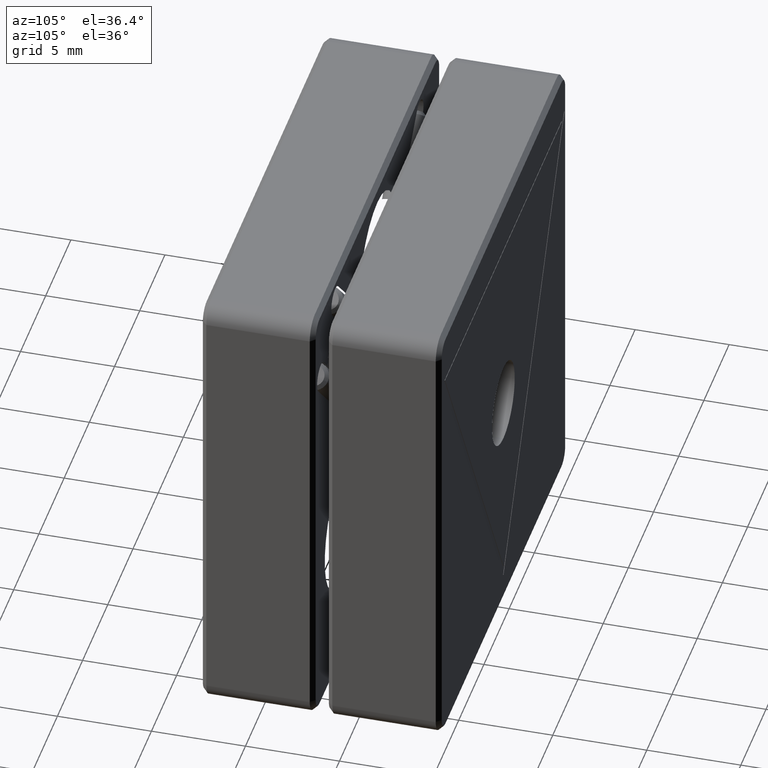
[diagram: clean part render]
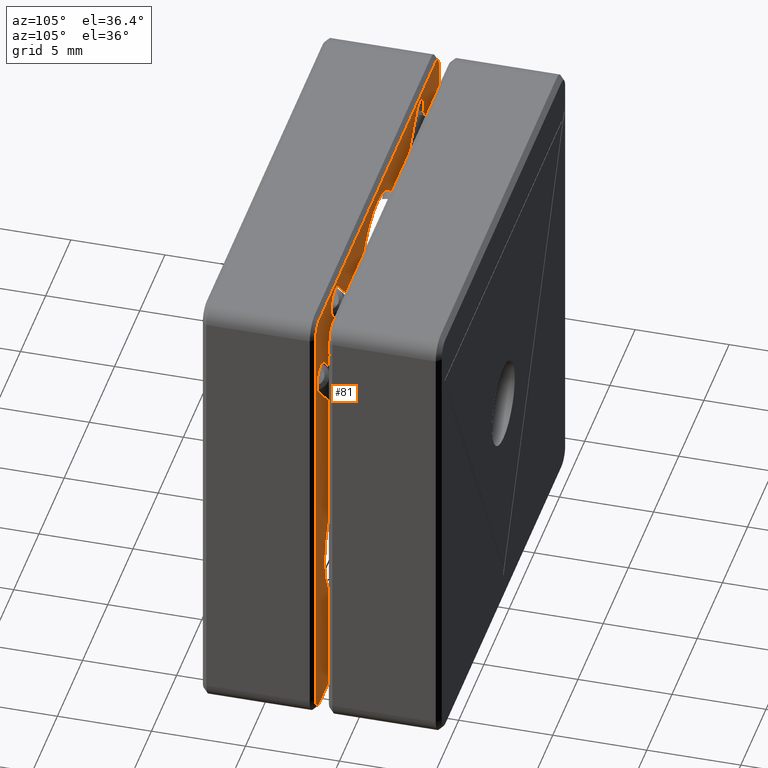
[diagram: same view with one face highlighted and labeled with its STEP entity id]
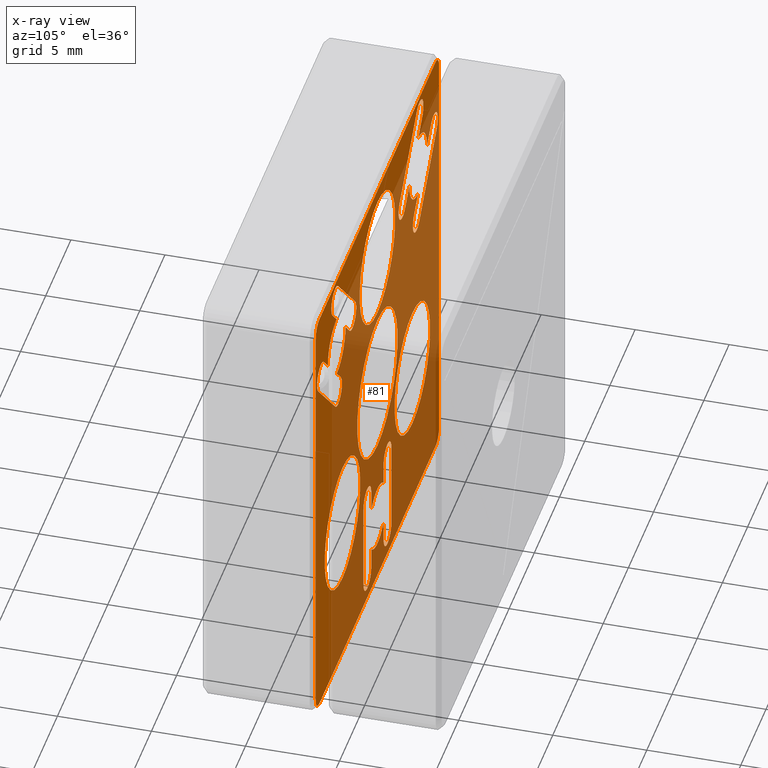
[diagram: x-ray of the same camera — body ghosted, the highlighted face saturated]
A machine part, auxiliary view. The second image highlights one B-rep face of the part: STEP entity #81.
The next image is the same camera in x-ray: the body ghosted, the highlighted face saturated — about 71% of this face is hidden behind the body in this view.
In plain terms, the highlighted planar face has unit normal (0, 1, 0).
Its self-contained STEP definition (entity closure, byte-faithful):
#3 = VECTOR ( 'NONE', #2230, 1000.000000000000000 ) ;
#11 = AXIS2_PLACEMENT_3D ( 'NONE', #2228, #701, #2520 ) ;
#20 = ORIENTED_EDGE ( 'NONE', *, *, #2879, .T. ) ;
#43 = DIRECTION ( 'NONE',  ( -0.0000000000000000000, -1.000000000000000000, -0.0000000000000000000 ) ) ;
#44 = CARTESIAN_POINT ( 'NONE',  ( 11.19705627484766275, 3.000000000000000000, 8.368629150101572378 ) ) ;
#67 = EDGE_LOOP ( 'NONE', ( #2270, #2521 ) ) ;
#73 = CARTESIAN_POINT ( 'NONE',  ( 8.368629150101458691, 3.000000000000000000, 11.97205627484775015 ) ) ;
#80 = LINE ( 'NONE', #3201, #1453 ) ;
#81 = ADVANCED_FACE ( 'NONE', ( #1383, #2047, #381, #3089, #3361, #1288, #2367, #1893 ), #555, .T. ) ;
#87 = LINE ( 'NONE', #1878, #2042 ) ;
#96 = VERTEX_POINT ( 'NONE', #1902 ) ;
#100 = ORIENTED_EDGE ( 'NONE', *, *, #3152, .F. ) ;
#109 = ORIENTED_EDGE ( 'NONE', *, *, #3322, .T. ) ;
#110 = VERTEX_POINT ( 'NONE', #2120 ) ;
#122 = CARTESIAN_POINT ( 'NONE',  ( 11.50000000000000711, 3.000000000000000000, 12.25000000000000178 ) ) ;
#135 = EDGE_CURVE ( 'NONE', #110, #1205, #3200, .T. ) ;
#137 = CARTESIAN_POINT ( 'NONE',  ( 6.928203230275491009, 3.000000000000000000, -0.4750000000000357270 ) ) ;
#138 = VERTEX_POINT ( 'NONE', #2662 ) ;
#159 = VERTEX_POINT ( 'NONE', #2917 ) ;
#169 = EDGE_CURVE ( 'NONE', #2098, #3027, #1023, .T. ) ;
#172 = DIRECTION ( 'NONE',  ( 0.0000000000000000000, 0.0000000000000000000, 1.000000000000000000 ) ) ;
#176 = ORIENTED_EDGE ( 'NONE', *, *, #3018, .F. ) ;
#181 = ORIENTED_EDGE ( 'NONE', *, *, #3286, .F. ) ;
#204 = DIRECTION ( 'NONE',  ( 0.0000000000000000000, 0.0000000000000000000, -1.000000000000000000 ) ) ;
#205 = EDGE_CURVE ( 'NONE', #2929, #1398, #770, .T. ) ;
#207 = CARTESIAN_POINT ( 'NONE',  ( -11.74506403026723689, 3.000000000000000000, 7.820621394682005345 ) ) ;
#216 = CARTESIAN_POINT ( 'NONE',  ( 4.898587196589406912E-16, 3.000000000000000000, -3.999999999999993339 ) ) ;
#224 = DIRECTION ( 'NONE',  ( 0.0000000000000000000, 0.0000000000000000000, 1.000000000000000000 ) ) ;
#232 = ORIENTED_EDGE ( 'NONE', *, *, #2838, .F. ) ;
#241 = LINE ( 'NONE', #2945, #3278 ) ;
#244 = CARTESIAN_POINT ( 'NONE',  ( -7.820621394681877447, 3.000000000000000000, 11.74506403026732215 ) ) ;
#262 = DIRECTION ( 'NONE',  ( -0.0000000000000000000, -0.0000000000000000000, 1.000000000000000000 ) ) ;
#263 = DIRECTION ( 'NONE',  ( 0.0000000000000000000, 0.0000000000000000000, -1.000000000000000000 ) ) ;
#269 = ORIENTED_EDGE ( 'NONE', *, *, #791, .F. ) ;
#287 = CARTESIAN_POINT ( 'NONE',  ( -10.64904851942807440, 3.000000000000000000, 8.916636905521153622 ) ) ;
#290 = CARTESIAN_POINT ( 'NONE',  ( -10.64904851942807618, 3.000000000000000000, 8.916636905521153622 ) ) ;
#302 = AXIS2_PLACEMENT_3D ( 'NONE', #2251, #2536, #1264 ) ;
#309 = CARTESIAN_POINT ( 'NONE',  ( 1.411405436017324910E-15, 3.000000000000000000, 4.474999999999996092 ) ) ;
#314 = ORIENTED_EDGE ( 'NONE', *, *, #2378, .F. ) ;
#315 = CARTESIAN_POINT ( 'NONE',  ( 11.50000000000000711, 3.000000000000000000, 11.50000000000000178 ) ) ;
#317 = LINE ( 'NONE', #2362, #404 ) ;
#320 = CARTESIAN_POINT ( 'NONE',  ( 12.25000000000000711, 3.000000000000000000, 11.50000000000000178 ) ) ;
#325 = CARTESIAN_POINT ( 'NONE',  ( -5.522524355825618514, 3.000000000000000000, 7.254935969732734691 ) ) ;
#327 = DIRECTION ( 'NONE',  ( 0.0000000000000000000, 0.0000000000000000000, 1.000000000000000000 ) ) ;
#331 = CIRCLE ( 'NONE', #1945, 3.524999999999991473 ) ;
#336 = ORIENTED_EDGE ( 'NONE', *, *, #1783, .T. ) ;
#337 = DIRECTION ( 'NONE',  ( 0.0000000000000000000, 0.0000000000000000000, -1.000000000000000000 ) ) ;
#345 = ORIENTED_EDGE ( 'NONE', *, *, #659, .F. ) ;
#347 = CARTESIAN_POINT ( 'NONE',  ( -7.254935969732668966, 3.000000000000000000, 5.522524355825702891 ) ) ;
#348 = ORIENTED_EDGE ( 'NONE', *, *, #1691, .F. ) ;
#352 = CARTESIAN_POINT ( 'NONE',  ( -11.49999999999999289, 3.000000000000000000, 11.50000000000000355 ) ) ;
#381 = FACE_BOUND ( 'NONE', #3020, .T. ) ;
#386 = VERTEX_POINT ( 'NONE', #1988 ) ;
#395 = DIRECTION ( 'NONE',  ( 0.7071067811865435759, -0.0000000000000000000, 0.7071067811865513475 ) ) ;
#404 = VECTOR ( 'NONE', #204, 1000.000000000000000 ) ;
#409 = CIRCLE ( 'NONE', #3087, 1.749999999999999778 ) ;
#410 = EDGE_LOOP ( 'NONE', ( #1942, #1810 ) ) ;
#414 = VECTOR ( 'NONE', #1797, 1000.000000000000114 ) ;
#415 = CARTESIAN_POINT ( 'NONE',  ( -6.928203230275546964, 3.000000000000000000, -3.999999999999935163 ) ) ;
#421 = CIRCLE ( 'NONE', #1968, 3.525000000000003908 ) ;
#423 = DIRECTION ( 'NONE',  ( -0.0000000000000000000, -1.000000000000000000, -0.0000000000000000000 ) ) ;
#425 = AXIS2_PLACEMENT_3D ( 'NONE', #2387, #2705, #2146 ) ;
#433 = EDGE_LOOP ( 'NONE', ( #1162, #1758, #1350, #2623, #348, #2456, #1172, #566, #2286, #2253, #2018, #314, #2479, #1390 ) ) ;
#455 = VECTOR ( 'NONE', #2949, 1000.000000000000000 ) ;
#491 = CIRCLE ( 'NONE', #762, 0.7750000000000031308 ) ;
#492 = CARTESIAN_POINT ( 'NONE',  ( 2.774999999999999467, 3.000000000000000000, -6.100000000000000533 ) ) ;
#501 = DIRECTION ( 'NONE',  ( -0.0000000000000000000, -1.000000000000000000, -0.0000000000000000000 ) ) ;
#510 = VERTEX_POINT ( 'NONE', #2282 ) ;
#528 = AXIS2_PLACEMENT_3D ( 'NONE', #623, #1129, #2181 ) ;
#539 = EDGE_CURVE ( 'NONE', #2170, #2795, #1196, .T. ) ;
#543 = DIRECTION ( 'NONE',  ( 0.0000000000000000000, 1.000000000000000000, 0.0000000000000000000 ) ) ;
#555 = PLANE ( 'NONE',  #1713 ) ;
#556 = CIRCLE ( 'NONE', #425, 3.999999999999993339 ) ;
#558 = AXIS2_PLACEMENT_3D ( 'NONE', #1777, #2836, #172 ) ;
#560 = CARTESIAN_POINT ( 'NONE',  ( 6.928203230275491009, 3.000000000000000000, -7.525000000000031442 ) ) ;
#563 = DIRECTION ( 'NONE',  ( -0.0000000000000000000, -0.0000000000000000000, 1.000000000000000000 ) ) ;
#566 = ORIENTED_EDGE ( 'NONE', *, *, #2074, .F. ) ;
#568 = CARTESIAN_POINT ( 'NONE',  ( 0.0000000000000000000, 3.000000000000000000, 0.0000000000000000000 ) ) ;
#569 = CARTESIAN_POINT ( 'NONE',  ( -2.000000000000000000, 3.000000000000000000, -10.90000000000000036 ) ) ;
#596 = DIRECTION ( 'NONE',  ( 0.0000000000000000000, 0.0000000000000000000, 1.000000000000000000 ) ) ;
#602 = VECTOR ( 'NONE', #789, 1000.000000000000000 ) ;
#613 = VERTEX_POINT ( 'NONE', #3177 ) ;
#614 = VERTEX_POINT ( 'NONE', #810 ) ;
#615 = AXIS2_PLACEMENT_3D ( 'NONE', #1163, #1109, #626 ) ;
#619 = VERTEX_POINT ( 'NONE', #2376 ) ;
#623 = CARTESIAN_POINT ( 'NONE',  ( 0.0000000000000000000, 3.000000000000000000, -8.500000000000000000 ) ) ;
#626 = DIRECTION ( 'NONE',  ( 0.0000000000000000000, 0.0000000000000000000, -1.000000000000000000 ) ) ;
#631 = CARTESIAN_POINT ( 'NONE',  ( -8.068285562473688444, 3.000000000000000000, 6.335873948566738356 ) ) ;
#633 = VERTEX_POINT ( 'NONE', #2913 ) ;
#642 = CIRCLE ( 'NONE', #1142, 0.7749999999999996891 ) ;
#643 = CARTESIAN_POINT ( 'NONE',  ( 1.225000000000000089, 3.000000000000000000, -7.250250025005001930 ) ) ;
#644 = DIRECTION ( 'NONE',  ( 0.0000000000000000000, 0.0000000000000000000, 1.000000000000000000 ) ) ;
#645 = DIRECTION ( 'NONE',  ( 0.0000000000000000000, 1.000000000000000000, 0.0000000000000000000 ) ) ;
#651 = DIRECTION ( 'NONE',  ( -0.7071067811865436870, 0.0000000000000000000, -0.7071067811865513475 ) ) ;
#659 = EDGE_CURVE ( 'NONE', #993, #1053, #1062, .T. ) ;
#682 = ORIENTED_EDGE ( 'NONE', *, *, #2751, .F. ) ;
#687 = LINE ( 'NONE', #290, #1800 ) ;
#690 = LINE ( 'NONE', #3006, #3 ) ;
#691 = EDGE_CURVE ( 'NONE', #1436, #781, #87, .T. ) ;
#701 = DIRECTION ( 'NONE',  ( -0.0000000000000000000, -1.000000000000000000, -0.0000000000000000000 ) ) ;
#704 = DIRECTION ( 'NONE',  ( 0.0000000000000000000, 0.0000000000000000000, 1.000000000000000000 ) ) ;
#709 = CARTESIAN_POINT ( 'NONE',  ( -8.916636905521034606, 3.000000000000000000, 10.64904851942817565 ) ) ;
#718 = CARTESIAN_POINT ( 'NONE',  ( -4.426508844986464908, 3.000000000000000000, 8.350951480571874086 ) ) ;
#728 = EDGE_CURVE ( 'NONE', #3027, #2098, #556, .T. ) ;
#734 = DIRECTION ( 'NONE',  ( -0.7071067811865436870, -0.0000000000000000000, 0.7071067811865513475 ) ) ;
#748 = AXIS2_PLACEMENT_3D ( 'NONE', #3243, #2974, #327 ) ;
#750 = EDGE_CURVE ( 'NONE', #3249, #96, #241, .T. ) ;
#752 = DIRECTION ( 'NONE',  ( 0.0000000000000000000, 0.0000000000000000000, -1.000000000000000000 ) ) ;
#759 = CIRCLE ( 'NONE', #1158, 0.7500000000000006661 ) ;
#762 = AXIS2_PLACEMENT_3D ( 'NONE', #2853, #2304, #990 ) ;
#770 = CIRCLE ( 'NONE', #2950, 0.7500000000000006661 ) ;
#771 = EDGE_CURVE ( 'NONE', #3215, #2514, #421, .T. ) ;
#773 = CARTESIAN_POINT ( 'NONE',  ( 6.928203230275491009, 3.000000000000000000, -4.000000000000033751 ) ) ;
#781 = VERTEX_POINT ( 'NONE', #1485 ) ;
#784 = VERTEX_POINT ( 'NONE', #1676 ) ;
#788 = ORIENTED_EDGE ( 'NONE', *, *, #1227, .F. ) ;
#789 = DIRECTION ( 'NONE',  ( -1.000000000000000000, 0.0000000000000000000, 0.0000000000000000000 ) ) ;
#790 = VERTEX_POINT ( 'NONE', #2933 ) ;
#791 = EDGE_CURVE ( 'NONE', #1034, #1338, #2825, .T. ) ;
#792 = DIRECTION ( 'NONE',  ( 1.387778780781445429E-16, 0.0000000000000000000, 1.000000000000000000 ) ) ;
#806 = CIRCLE ( 'NONE', #2861, 3.524999999999998135 ) ;
#808 = CARTESIAN_POINT ( 'NONE',  ( -1.225000000000000311, 3.000000000000000000, -6.100000000000000533 ) ) ;
#810 = CARTESIAN_POINT ( 'NONE',  ( -11.49999999999999645, 3.000000000000000000, -12.24999999999999822 ) ) ;
#815 = AXIS2_PLACEMENT_3D ( 'NONE', #2396, #1835, #1381 ) ;
#827 = CARTESIAN_POINT ( 'NONE',  ( -2.774999999999999467, 3.000000000000000000, -10.90000000000000036 ) ) ;
#831 = CARTESIAN_POINT ( 'NONE',  ( 6.928203230275491009, 3.000000000000000000, -4.000000000000033751 ) ) ;
#833 = EDGE_CURVE ( 'NONE', #988, #110, #3039, .T. ) ;
#838 = AXIS2_PLACEMENT_3D ( 'NONE', #568, #2671, #1400 ) ;
#840 = DIRECTION ( 'NONE',  ( 0.0000000000000000000, 0.0000000000000000000, 1.000000000000000000 ) ) ;
#850 = CARTESIAN_POINT ( 'NONE',  ( 2.774999999999999467, 3.000000000000000000, -10.90000000000000036 ) ) ;
#857 = DIRECTION ( 'NONE',  ( 0.0000000000000000000, 1.000000000000000000, 0.0000000000000000000 ) ) ;
#870 = DIRECTION ( 'NONE',  ( -0.0000000000000000000, -0.0000000000000000000, 1.000000000000000000 ) ) ;
#881 = LINE ( 'NONE', #3066, #2518 ) ;
#902 = CARTESIAN_POINT ( 'NONE',  ( 4.974516600406046152, 3.000000000000000000, 7.802943725152298171 ) ) ;
#908 = EDGE_CURVE ( 'NONE', #138, #2929, #2409, .T. ) ;
#953 = CARTESIAN_POINT ( 'NONE',  ( -8.916636905521034606, 3.000000000000000000, 10.64904851942817565 ) ) ;
#960 = ORIENTED_EDGE ( 'NONE', *, *, #2635, .T. ) ;
#961 = CIRCLE ( 'NONE', #1304, 0.7750000000000031308 ) ;
#974 = CIRCLE ( 'NONE', #3329, 3.524999999999998135 ) ;
#988 = VERTEX_POINT ( 'NONE', #1744 ) ;
#990 = DIRECTION ( 'NONE',  ( 0.0000000000000000000, 0.0000000000000000000, 1.000000000000000000 ) ) ;
#991 = VERTEX_POINT ( 'NONE', #718 ) ;
#993 = VERTEX_POINT ( 'NONE', #643 ) ;
#1023 = CIRCLE ( 'NONE', #838, 3.999999999999993339 ) ;
#1033 = ORIENTED_EDGE ( 'NONE', *, *, #771, .T. ) ;
#1034 = VERTEX_POINT ( 'NONE', #953 ) ;
#1036 = EDGE_CURVE ( 'NONE', #613, #1075, #1693, .T. ) ;
#1053 = VERTEX_POINT ( 'NONE', #2256 ) ;
#1062 = LINE ( 'NONE', #2168, #1537 ) ;
#1071 = VERTEX_POINT ( 'NONE', #3324 ) ;
#1072 = ORIENTED_EDGE ( 'NONE', *, *, #2064, .F. ) ;
#1075 = VERTEX_POINT ( 'NONE', #3316 ) ;
#1076 = DIRECTION ( 'NONE',  ( 0.0000000000000000000, 1.000000000000000000, 0.0000000000000000000 ) ) ;
#1080 = AXIS2_PLACEMENT_3D ( 'NONE', #1306, #2083, #1818 ) ;
#1083 = DIRECTION ( 'NONE',  ( 0.0000000000000000000, 1.000000000000000000, -0.0000000000000000000 ) ) ;
#1088 = CARTESIAN_POINT ( 'NONE',  ( 5.522524355825626508, 3.000000000000000000, 7.254935969732725809 ) ) ;
#1091 = CARTESIAN_POINT ( 'NONE',  ( -6.928203230275546964, 3.000000000000000000, -0.4749999999999433564 ) ) ;
#1098 = EDGE_CURVE ( 'NONE', #3212, #3249, #2238, .T. ) ;
#1104 = DIRECTION ( 'NONE',  ( 0.0000000000000000000, 0.0000000000000000000, -1.000000000000000000 ) ) ;
#1108 = VERTEX_POINT ( 'NONE', #2839 ) ;
#1109 = DIRECTION ( 'NONE',  ( 0.0000000000000000000, 1.000000000000000000, -0.0000000000000000000 ) ) ;
#1124 = CARTESIAN_POINT ( 'NONE',  ( -2.774999999999999467, 3.000000000000000000, -6.100000000000001421 ) ) ;
#1127 = VERTEX_POINT ( 'NONE', #2058 ) ;
#1129 = DIRECTION ( 'NONE',  ( 0.0000000000000000000, 1.000000000000000000, 0.0000000000000000000 ) ) ;
#1135 = ORIENTED_EDGE ( 'NONE', *, *, #2616, .F. ) ;
#1142 = AXIS2_PLACEMENT_3D ( 'NONE', #569, #543, #2907 ) ;
#1145 = CARTESIAN_POINT ( 'NONE',  ( -8.085786437626849121, 3.000000000000000000, 8.085786437626941492 ) ) ;
#1149 = CARTESIAN_POINT ( 'NONE',  ( 11.74506403026723689, 3.000000000000000000, 7.820621394682005345 ) ) ;
#1158 = AXIS2_PLACEMENT_3D ( 'NONE', #352, #645, #2215 ) ;
#1159 = ORIENTED_EDGE ( 'NONE', *, *, #1324, .F. ) ;
#1162 = ORIENTED_EDGE ( 'NONE', *, *, #2254, .F. ) ;
#1163 = CARTESIAN_POINT ( 'NONE',  ( 8.085786437626849121, 3.000000000000000000, 8.085786437626941492 ) ) ;
#1172 = ORIENTED_EDGE ( 'NONE', *, *, #2299, .F. ) ;
#1179 = DIRECTION ( 'NONE',  ( 0.0000000000000000000, 1.000000000000000000, -0.0000000000000000000 ) ) ;
#1196 = LINE ( 'NONE', #2832, #2359 ) ;
#1205 = VERTEX_POINT ( 'NONE', #1848 ) ;
#1207 = EDGE_CURVE ( 'NONE', #614, #633, #2826, .T. ) ;
#1209 = ORIENTED_EDGE ( 'NONE', *, *, #539, .F. ) ;
#1211 = EDGE_LOOP ( 'NONE', ( #232, #1420, #2669, #1209, #176, #345, #682, #100, #3051, #3003, #2793, #2957 ) ) ;
#1227 = EDGE_CURVE ( 'NONE', #991, #3375, #1651, .T. ) ;
#1230 = CARTESIAN_POINT ( 'NONE',  ( 9.797174393178825657E-16, 3.000000000000000000, 8.000000000000000000 ) ) ;
#1248 = ORIENTED_EDGE ( 'NONE', *, *, #205, .T. ) ;
#1264 = DIRECTION ( 'NONE',  ( 0.0000000000000000000, 0.0000000000000000000, -1.000000000000000000 ) ) ;
#1268 = DIRECTION ( 'NONE',  ( 0.0000000000000000000, 0.0000000000000000000, -1.000000000000000000 ) ) ;
#1269 = DIRECTION ( 'NONE',  ( 0.0000000000000000000, 1.000000000000000000, -0.0000000000000000000 ) ) ;
#1277 = EDGE_CURVE ( 'NONE', #510, #991, #1846, .T. ) ;
#1280 = CIRCLE ( 'NONE', #302, 0.7750000000000031308 ) ;
#1288 = FACE_BOUND ( 'NONE', #433, .T. ) ;
#1289 = DIRECTION ( 'NONE',  ( 0.0000000000000000000, 0.0000000000000000000, 1.000000000000000000 ) ) ;
#1296 = EDGE_CURVE ( 'NONE', #2897, #1298, #806, .T. ) ;
#1298 = VERTEX_POINT ( 'NONE', #560 ) ;
#1304 = AXIS2_PLACEMENT_3D ( 'NONE', #1954, #1721, #644 ) ;
#1306 = CARTESIAN_POINT ( 'NONE',  ( -7.802943725152143628, 3.000000000000000000, 4.974516600406023947 ) ) ;
#1324 = EDGE_CURVE ( 'NONE', #96, #1938, #2156, .T. ) ;
#1325 = AXIS2_PLACEMENT_3D ( 'NONE', #3181, #1083, #1104 ) ;
#1334 = DIRECTION ( 'NONE',  ( 0.0000000000000000000, 1.000000000000000000, 0.0000000000000000000 ) ) ;
#1338 = VERTEX_POINT ( 'NONE', #2454 ) ;
#1340 = EDGE_CURVE ( 'NONE', #2795, #1436, #2196, .T. ) ;
#1350 = ORIENTED_EDGE ( 'NONE', *, *, #3030, .F. ) ;
#1353 = VECTOR ( 'NONE', #3273, 1000.000000000000000 ) ;
#1377 = DIRECTION ( 'NONE',  ( 0.0000000000000000000, -0.0000000000000000000, 1.000000000000000000 ) ) ;
#1381 = DIRECTION ( 'NONE',  ( 0.0000000000000000000, 0.0000000000000000000, -1.000000000000000000 ) ) ;
#1383 = FACE_BOUND ( 'NONE', #2412, .T. ) ;
#1388 = DIRECTION ( 'NONE',  ( 0.7071067811865435759, 0.0000000000000000000, -0.7071067811865513475 ) ) ;
#1390 = ORIENTED_EDGE ( 'NONE', *, *, #1036, .F. ) ;
#1398 = VERTEX_POINT ( 'NONE', #320 ) ;
#1400 = DIRECTION ( 'NONE',  ( 0.0000000000000000000, 0.0000000000000000000, 1.000000000000000000 ) ) ;
#1402 = DIRECTION ( 'NONE',  ( 0.0000000000000000000, 1.000000000000000000, 0.0000000000000000000 ) ) ;
#1410 = LINE ( 'NONE', #1746, #602 ) ;
#1417 = EDGE_CURVE ( 'NONE', #3013, #790, #2783, .T. ) ;
#1420 = ORIENTED_EDGE ( 'NONE', *, *, #691, .F. ) ;
#1424 = EDGE_CURVE ( 'NONE', #159, #1584, #690, .T. ) ;
#1428 = ORIENTED_EDGE ( 'NONE', *, *, #3404, .T. ) ;
#1431 = CARTESIAN_POINT ( 'NONE',  ( -11.19705627484755084, 3.000000000000000000, 9.143629150101475034 ) ) ;
#1436 = VERTEX_POINT ( 'NONE', #2760 ) ;
#1442 = AXIS2_PLACEMENT_3D ( 'NONE', #1145, #1402, #2982 ) ;
#1446 = DIRECTION ( 'NONE',  ( 0.0000000000000000000, 1.000000000000000000, 0.0000000000000000000 ) ) ;
#1453 = VECTOR ( 'NONE', #563, 1000.000000000000000 ) ;
#1483 = DIRECTION ( 'NONE',  ( 0.0000000000000000000, 0.0000000000000000000, -1.000000000000000000 ) ) ;
#1485 = CARTESIAN_POINT ( 'NONE',  ( 1.225000000000000533, 3.000000000000000000, -9.749749974994998070 ) ) ;
#1488 = EDGE_CURVE ( 'NONE', #1338, #510, #1280, .T. ) ;
#1494 = LINE ( 'NONE', #1704, #2780 ) ;
#1513 = DIRECTION ( 'NONE',  ( 0.0000000000000000000, 0.0000000000000000000, 1.000000000000000000 ) ) ;
#1521 = VECTOR ( 'NONE', #792, 1000.000000000000000 ) ;
#1523 = CIRCLE ( 'NONE', #3339, 0.7749999999999996891 ) ;
#1533 = CARTESIAN_POINT ( 'NONE',  ( 8.916636905521034606, 3.000000000000000000, 10.64904851942817565 ) ) ;
#1537 = VECTOR ( 'NONE', #870, 1000.000000000000000 ) ;
#1544 = EDGE_CURVE ( 'NONE', #3134, #2752, #331, .T. ) ;
#1560 = DIRECTION ( 'NONE',  ( 0.0000000000000000000, 0.0000000000000000000, 1.000000000000000000 ) ) ;
#1577 = DIRECTION ( 'NONE',  ( 0.0000000000000000000, 0.0000000000000000000, 1.000000000000000000 ) ) ;
#1584 = VERTEX_POINT ( 'NONE', #207 ) ;
#1588 = EDGE_CURVE ( 'NONE', #1205, #784, #3237, .T. ) ;
#1592 = AXIS2_PLACEMENT_3D ( 'NONE', #3337, #2775, #3305 ) ;
#1598 = EDGE_CURVE ( 'NONE', #2295, #159, #3114, .T. ) ;
#1605 = LINE ( 'NONE', #2679, #2439 ) ;
#1621 = VERTEX_POINT ( 'NONE', #827 ) ;
#1626 = DIRECTION ( 'NONE',  ( 0.0000000000000000000, 0.0000000000000000000, 1.000000000000000000 ) ) ;
#1627 = ORIENTED_EDGE ( 'NONE', *, *, #908, .T. ) ;
#1636 = DIRECTION ( 'NONE',  ( 0.0000000000000000000, 1.000000000000000000, -0.0000000000000000000 ) ) ;
#1646 = EDGE_CURVE ( 'NONE', #3336, #2295, #687, .T. ) ;
#1649 = AXIS2_PLACEMENT_3D ( 'NONE', #2677, #1660, #1895 ) ;
#1651 = CIRCLE ( 'NONE', #815, 0.7750000000000031308 ) ;
#1660 = DIRECTION ( 'NONE',  ( 0.0000000000000000000, 1.000000000000000000, -0.0000000000000000000 ) ) ;
#1673 = DIRECTION ( 'NONE',  ( -0.7071067811865436870, 0.0000000000000000000, -0.7071067811865513475 ) ) ;
#1676 = CARTESIAN_POINT ( 'NONE',  ( 8.068285562473688444, 3.000000000000000000, 6.335873948566738356 ) ) ;
#1691 = EDGE_CURVE ( 'NONE', #3247, #1071, #2075, .T. ) ;
#1693 = LINE ( 'NONE', #2540, #2492 ) ;
#1697 = EDGE_CURVE ( 'NONE', #3250, #3247, #3031, .T. ) ;
#1698 = CARTESIAN_POINT ( 'NONE',  ( 8.916636905521034606, 3.000000000000000000, 10.64904851942817565 ) ) ;
#1703 = EDGE_LOOP ( 'NONE', ( #1855, #1627, #1248, #109, #336, #1901, #2874, #960 ) ) ;
#1704 = CARTESIAN_POINT ( 'NONE',  ( -1.225000000000000311, 3.000000000000000000, -6.100000000000000533 ) ) ;
#1711 = DIRECTION ( 'NONE',  ( 0.0000000000000000000, 1.000000000000000000, -0.0000000000000000000 ) ) ;
#1713 = AXIS2_PLACEMENT_3D ( 'NONE', #2368, #2128, #1377 ) ;
#1721 = DIRECTION ( 'NONE',  ( 0.0000000000000000000, 1.000000000000000000, 0.0000000000000000000 ) ) ;
#1731 = DIRECTION ( 'NONE',  ( 0.0000000000000000000, 1.000000000000000000, 0.0000000000000000000 ) ) ;
#1733 = VECTOR ( 'NONE', #3009, 1000.000000000000000 ) ;
#1744 = CARTESIAN_POINT ( 'NONE',  ( 11.74506403026723689, 3.000000000000000000, 7.820621394682005345 ) ) ;
#1746 = CARTESIAN_POINT ( 'NONE',  ( -11.49999999999999645, 3.000000000000000000, -12.24999999999999822 ) ) ;
#1758 = ORIENTED_EDGE ( 'NONE', *, *, #1417, .F. ) ;
#1777 = CARTESIAN_POINT ( 'NONE',  ( 8.368629150101458691, 3.000000000000000000, 11.19705627484774801 ) ) ;
#1783 = EDGE_CURVE ( 'NONE', #2178, #3059, #2487, .T. ) ;
#1797 = DIRECTION ( 'NONE',  ( 0.7071067811865435759, -0.0000000000000000000, 0.7071067811865513475 ) ) ;
#1800 = VECTOR ( 'NONE', #1388, 1000.000000000000114 ) ;
#1810 = ORIENTED_EDGE ( 'NONE', *, *, #1865, .T. ) ;
#1816 = CARTESIAN_POINT ( 'NONE',  ( 11.50000000000000355, 3.000000000000000000, -12.24999999999999822 ) ) ;
#1818 = DIRECTION ( 'NONE',  ( 0.0000000000000000000, 0.0000000000000000000, 1.000000000000000000 ) ) ;
#1821 = CARTESIAN_POINT ( 'NONE',  ( -12.24999999999999289, 3.000000000000000000, 11.50000000000000178 ) ) ;
#1828 = EDGE_CURVE ( 'NONE', #1108, #619, #1494, .T. ) ;
#1830 = CIRCLE ( 'NONE', #528, 1.749999999999999778 ) ;
#1835 = DIRECTION ( 'NONE',  ( 0.0000000000000000000, 1.000000000000000000, -0.0000000000000000000 ) ) ;
#1846 = LINE ( 'NONE', #244, #2318 ) ;
#1848 = CARTESIAN_POINT ( 'NONE',  ( 7.254935969732671630, 3.000000000000000000, 5.522524355825700226 ) ) ;
#1855 = ORIENTED_EDGE ( 'NONE', *, *, #2002, .T. ) ;
#1865 = EDGE_CURVE ( 'NONE', #1298, #2897, #974, .T. ) ;
#1869 = CIRCLE ( 'NONE', #1914, 3.525000000000003908 ) ;
#1871 = VERTEX_POINT ( 'NONE', #1821 ) ;
#1873 = CARTESIAN_POINT ( 'NONE',  ( -11.49999999999999645, 3.000000000000000000, -11.50000000000000000 ) ) ;
#1878 = CARTESIAN_POINT ( 'NONE',  ( 1.225000000000000311, 3.000000000000000000, -6.100000000000000533 ) ) ;
#1893 = FACE_BOUND ( 'NONE', #67, .T. ) ;
#1895 = DIRECTION ( 'NONE',  ( 0.0000000000000000000, 0.0000000000000000000, -1.000000000000000000 ) ) ;
#1901 = ORIENTED_EDGE ( 'NONE', *, *, #2096, .T. ) ;
#1902 = CARTESIAN_POINT ( 'NONE',  ( -9.835698926687049592, 3.000000000000000000, 8.103287312780119933 ) ) ;
#1914 = AXIS2_PLACEMENT_3D ( 'NONE', #1230, #423, #1513 ) ;
#1919 = AXIS2_PLACEMENT_3D ( 'NONE', #3029, #1179, #1483 ) ;
#1936 = DIRECTION ( 'NONE',  ( 0.0000000000000000000, 0.0000000000000000000, 1.000000000000000000 ) ) ;
#1938 = VERTEX_POINT ( 'NONE', #2406 ) ;
#1942 = ORIENTED_EDGE ( 'NONE', *, *, #1296, .T. ) ;
#1945 = AXIS2_PLACEMENT_3D ( 'NONE', #415, #3100, #704 ) ;
#1954 = CARTESIAN_POINT ( 'NONE',  ( -11.19705627484755084, 3.000000000000000000, 8.368629150101471126 ) ) ;
#1968 = AXIS2_PLACEMENT_3D ( 'NONE', #3218, #43, #2157 ) ;
#1971 = VECTOR ( 'NONE', #2987, 1000.000000000000000 ) ;
#1988 = CARTESIAN_POINT ( 'NONE',  ( 11.19705627484766275, 3.000000000000000000, 9.143629150101576286 ) ) ;
#1995 = CIRCLE ( 'NONE', #615, 1.749999999999999778 ) ;
#2002 = EDGE_CURVE ( 'NONE', #1871, #138, #759, .T. ) ;
#2018 = ORIENTED_EDGE ( 'NONE', *, *, #833, .F. ) ;
#2042 = VECTOR ( 'NONE', #262, 1000.000000000000000 ) ;
#2047 = FACE_BOUND ( 'NONE', #410, .T. ) ;
#2050 = AXIS2_PLACEMENT_3D ( 'NONE', #902, #2962, #596 ) ;
#2058 = CARTESIAN_POINT ( 'NONE',  ( -6.335873948566646874, 3.000000000000000000, 8.068285562473759498 ) ) ;
#2064 = EDGE_CURVE ( 'NONE', #1938, #1034, #2777, .T. ) ;
#2074 = EDGE_CURVE ( 'NONE', #784, #2609, #2232, .T. ) ;
#2075 = LINE ( 'NONE', #2194, #455 ) ;
#2083 = DIRECTION ( 'NONE',  ( 0.0000000000000000000, 1.000000000000000000, 0.0000000000000000000 ) ) ;
#2096 = EDGE_CURVE ( 'NONE', #3059, #614, #1410, .T. ) ;
#2098 = VERTEX_POINT ( 'NONE', #216 ) ;
#2109 = CARTESIAN_POINT ( 'NONE',  ( 6.335873948566646874, 3.000000000000000000, 8.068285562473759498 ) ) ;
#2118 = VECTOR ( 'NONE', #2542, 1000.000000000000000 ) ;
#2120 = CARTESIAN_POINT ( 'NONE',  ( 8.350951480571824348, 3.000000000000000000, 4.426508844986557278 ) ) ;
#2128 = DIRECTION ( 'NONE',  ( 0.0000000000000000000, 1.000000000000000000, 0.0000000000000000000 ) ) ;
#2146 = DIRECTION ( 'NONE',  ( 0.0000000000000000000, 0.0000000000000000000, 1.000000000000000000 ) ) ;
#2147 = CARTESIAN_POINT ( 'NONE',  ( -2.000000000000000000, 3.000000000000000000, -6.100000000000000533 ) ) ;
#2156 = CIRCLE ( 'NONE', #1442, 1.749999999999999778 ) ;
#2157 = DIRECTION ( 'NONE',  ( 0.0000000000000000000, 0.0000000000000000000, 1.000000000000000000 ) ) ;
#2166 = ORIENTED_EDGE ( 'NONE', *, *, #2483, .F. ) ;
#2168 = CARTESIAN_POINT ( 'NONE',  ( 1.225000000000000311, 3.000000000000000000, -6.100000000000000533 ) ) ;
#2170 = VERTEX_POINT ( 'NONE', #492 ) ;
#2171 = EDGE_CURVE ( 'NONE', #1621, #3288, #80, .T. ) ;
#2172 = CARTESIAN_POINT ( 'NONE',  ( -1.225000000000000089, 3.000000000000000000, -7.250250025005001930 ) ) ;
#2174 = VERTEX_POINT ( 'NONE', #808 ) ;
#2178 = VERTEX_POINT ( 'NONE', #3419 ) ;
#2181 = DIRECTION ( 'NONE',  ( 0.0000000000000000000, 0.0000000000000000000, 1.000000000000000000 ) ) ;
#2190 = CARTESIAN_POINT ( 'NONE',  ( 12.25000000000000355, 3.000000000000000000, -11.50000000000000000 ) ) ;
#2194 = CARTESIAN_POINT ( 'NONE',  ( 7.820621394681877447, 3.000000000000000000, 11.74506403026732215 ) ) ;
#2196 = CIRCLE ( 'NONE', #1649, 0.7749999999999996891 ) ;
#2215 = DIRECTION ( 'NONE',  ( 0.0000000000000000000, 0.0000000000000000000, 1.000000000000000000 ) ) ;
#2226 = ORIENTED_EDGE ( 'NONE', *, *, #1646, .F. ) ;
#2227 = CIRCLE ( 'NONE', #1919, 0.7750000000000031308 ) ;
#2228 = CARTESIAN_POINT ( 'NONE',  ( -6.928203230275546964, 3.000000000000000000, -3.999999999999935163 ) ) ;
#2230 = DIRECTION ( 'NONE',  ( -0.7071067811865437980, -0.0000000000000000000, 0.7071067811865513475 ) ) ;
#2232 = CIRCLE ( 'NONE', #1592, 1.749999999999999778 ) ;
#2238 = CIRCLE ( 'NONE', #2958, 0.7750000000000031308 ) ;
#2243 = VERTEX_POINT ( 'NONE', #73 ) ;
#2251 = CARTESIAN_POINT ( 'NONE',  ( -8.368629150101341452, 3.000000000000000000, 11.19705627484765031 ) ) ;
#2253 = ORIENTED_EDGE ( 'NONE', *, *, #135, .F. ) ;
#2254 = EDGE_CURVE ( 'NONE', #790, #613, #1995, .T. ) ;
#2256 = CARTESIAN_POINT ( 'NONE',  ( 1.225000000000000311, 3.000000000000000000, -6.100000000000000533 ) ) ;
#2262 = LINE ( 'NONE', #2190, #1353 ) ;
#2270 = ORIENTED_EDGE ( 'NONE', *, *, #728, .F. ) ;
#2282 = CARTESIAN_POINT ( 'NONE',  ( -7.820621394681877447, 3.000000000000000000, 11.74506403026732215 ) ) ;
#2283 = CARTESIAN_POINT ( 'NONE',  ( 0.0000000000000000000, 3.000000000000000000, 3.999999999999993339 ) ) ;
#2286 = ORIENTED_EDGE ( 'NONE', *, *, #1588, .F. ) ;
#2295 = VERTEX_POINT ( 'NONE', #347 ) ;
#2299 = EDGE_CURVE ( 'NONE', #2609, #3250, #1605, .T. ) ;
#2301 = AXIS2_PLACEMENT_3D ( 'NONE', #2480, #1711, #337 ) ;
#2304 = DIRECTION ( 'NONE',  ( 0.0000000000000000000, 1.000000000000000000, 0.0000000000000000000 ) ) ;
#2318 = VECTOR ( 'NONE', #2887, 1000.000000000000000 ) ;
#2359 = VECTOR ( 'NONE', #1268, 1000.000000000000000 ) ;
#2362 = CARTESIAN_POINT ( 'NONE',  ( -1.225000000000000311, 3.000000000000000000, -6.100000000000000533 ) ) ;
#2367 = FACE_BOUND ( 'NONE', #1211, .T. ) ;
#2368 = CARTESIAN_POINT ( 'NONE',  ( 0.0000000000000000000, 3.000000000000000000, 0.0000000000000000000 ) ) ;
#2376 = CARTESIAN_POINT ( 'NONE',  ( -1.225000000000000311, 3.000000000000000000, -10.90000000000000036 ) ) ;
#2378 = EDGE_CURVE ( 'NONE', #386, #988, #2227, .T. ) ;
#2387 = CARTESIAN_POINT ( 'NONE',  ( 0.0000000000000000000, 3.000000000000000000, 0.0000000000000000000 ) ) ;
#2396 = CARTESIAN_POINT ( 'NONE',  ( -4.974516600405932465, 3.000000000000000000, 7.802943725152202248 ) ) ;
#2403 = DIRECTION ( 'NONE',  ( 0.0000000000000000000, 1.000000000000000000, 0.0000000000000000000 ) ) ;
#2405 = CIRCLE ( 'NONE', #2430, 1.749999999999999778 ) ;
#2406 = CARTESIAN_POINT ( 'NONE',  ( -8.103287312780011575, 3.000000000000000000, 9.835698926687143739 ) ) ;
#2409 = LINE ( 'NONE', #2470, #1733 ) ;
#2412 = EDGE_LOOP ( 'NONE', ( #1428, #1033 ) ) ;
#2414 = CARTESIAN_POINT ( 'NONE',  ( 0.0000000000000000000, 3.000000000000000000, -8.500000000000000000 ) ) ;
#2430 = AXIS2_PLACEMENT_3D ( 'NONE', #3129, #1334, #1577 ) ;
#2434 = DIRECTION ( 'NONE',  ( 0.7071067811865435759, 0.0000000000000000000, -0.7071067811865513475 ) ) ;
#2435 = DIRECTION ( 'NONE',  ( 0.0000000000000000000, 0.0000000000000000000, 1.000000000000000000 ) ) ;
#2439 = VECTOR ( 'NONE', #1673, 1000.000000000000000 ) ;
#2454 = CARTESIAN_POINT ( 'NONE',  ( -8.368629150101341452, 3.000000000000000000, 11.97205627484765245 ) ) ;
#2456 = ORIENTED_EDGE ( 'NONE', *, *, #1697, .F. ) ;
#2459 = ORIENTED_EDGE ( 'NONE', *, *, #1277, .F. ) ;
#2465 = EDGE_LOOP ( 'NONE', ( #1135, #2166, #788, #2459, #2762, #269, #1072, #1159, #2960, #2539, #181, #2919, #3135, #2226 ) ) ;
#2470 = CARTESIAN_POINT ( 'NONE',  ( 11.50000000000000711, 3.000000000000000000, 12.25000000000000178 ) ) ;
#2479 = ORIENTED_EDGE ( 'NONE', *, *, #3206, .F. ) ;
#2480 = CARTESIAN_POINT ( 'NONE',  ( -8.368629150101341452, 3.000000000000000000, 11.19705627484765031 ) ) ;
#2483 = EDGE_CURVE ( 'NONE', #3375, #1127, #881, .T. ) ;
#2487 = CIRCLE ( 'NONE', #748, 0.7500000000000006661 ) ;
#2492 = VECTOR ( 'NONE', #395, 1000.000000000000114 ) ;
#2514 = VERTEX_POINT ( 'NONE', #2537 ) ;
#2518 = VECTOR ( 'NONE', #734, 1000.000000000000000 ) ;
#2520 = DIRECTION ( 'NONE',  ( 0.0000000000000000000, 0.0000000000000000000, 1.000000000000000000 ) ) ;
#2521 = ORIENTED_EDGE ( 'NONE', *, *, #169, .F. ) ;
#2536 = DIRECTION ( 'NONE',  ( 0.0000000000000000000, 1.000000000000000000, -0.0000000000000000000 ) ) ;
#2537 = CARTESIAN_POINT ( 'NONE',  ( 9.797174393178825657E-16, 3.000000000000000000, 11.52500000000000391 ) ) ;
#2539 = ORIENTED_EDGE ( 'NONE', *, *, #1098, .F. ) ;
#2540 = CARTESIAN_POINT ( 'NONE',  ( 10.64904851942807618, 3.000000000000000000, 8.916636905521153622 ) ) ;
#2542 = DIRECTION ( 'NONE',  ( -0.7071067811865436870, -0.0000000000000000000, 0.7071067811865513475 ) ) ;
#2555 = EDGE_CURVE ( 'NONE', #1071, #2243, #3415, .T. ) ;
#2595 = CIRCLE ( 'NONE', #2712, 0.7749999999999996891 ) ;
#2609 = VERTEX_POINT ( 'NONE', #2109 ) ;
#2611 = CARTESIAN_POINT ( 'NONE',  ( -6.928203230275546964, 3.000000000000000000, -7.524999999999926636 ) ) ;
#2616 = EDGE_CURVE ( 'NONE', #1127, #3336, #2405, .T. ) ;
#2623 = ORIENTED_EDGE ( 'NONE', *, *, #2555, .F. ) ;
#2635 = EDGE_CURVE ( 'NONE', #633, #1871, #3343, .T. ) ;
#2658 = CARTESIAN_POINT ( 'NONE',  ( 4.426508844986464908, 3.000000000000000000, 8.350951480571874086 ) ) ;
#2661 = EDGE_CURVE ( 'NONE', #619, #1621, #642, .T. ) ;
#2662 = CARTESIAN_POINT ( 'NONE',  ( -11.49999999999999289, 3.000000000000000000, 12.25000000000000355 ) ) ;
#2669 = ORIENTED_EDGE ( 'NONE', *, *, #1340, .F. ) ;
#2671 = DIRECTION ( 'NONE',  ( -0.0000000000000000000, 1.000000000000000000, -0.0000000000000000000 ) ) ;
#2677 = CARTESIAN_POINT ( 'NONE',  ( 2.000000000000000000, 3.000000000000000000, -10.90000000000000036 ) ) ;
#2679 = CARTESIAN_POINT ( 'NONE',  ( 8.916636905521034606, 3.000000000000000000, 10.64904851942817565 ) ) ;
#2705 = DIRECTION ( 'NONE',  ( -0.0000000000000000000, 1.000000000000000000, -0.0000000000000000000 ) ) ;
#2712 = AXIS2_PLACEMENT_3D ( 'NONE', #2147, #857, #2435 ) ;
#2751 = EDGE_CURVE ( 'NONE', #2813, #993, #409, .T. ) ;
#2752 = VERTEX_POINT ( 'NONE', #1091 ) ;
#2760 = CARTESIAN_POINT ( 'NONE',  ( 1.225000000000000311, 3.000000000000000000, -10.90000000000000036 ) ) ;
#2762 = ORIENTED_EDGE ( 'NONE', *, *, #1488, .F. ) ;
#2775 = DIRECTION ( 'NONE',  ( 0.0000000000000000000, 1.000000000000000000, -0.0000000000000000000 ) ) ;
#2777 = LINE ( 'NONE', #709, #2118 ) ;
#2780 = VECTOR ( 'NONE', #2849, 1000.000000000000000 ) ;
#2783 = LINE ( 'NONE', #1698, #3318 ) ;
#2793 = ORIENTED_EDGE ( 'NONE', *, *, #2661, .F. ) ;
#2795 = VERTEX_POINT ( 'NONE', #850 ) ;
#2813 = VERTEX_POINT ( 'NONE', #2172 ) ;
#2825 = CIRCLE ( 'NONE', #2301, 0.7750000000000031308 ) ;
#2826 = CIRCLE ( 'NONE', #3344, 0.7499999999999988898 ) ;
#2832 = CARTESIAN_POINT ( 'NONE',  ( 2.774999999999999467, 3.000000000000000000, -6.100000000000000533 ) ) ;
#2836 = DIRECTION ( 'NONE',  ( 0.0000000000000000000, 1.000000000000000000, 0.0000000000000000000 ) ) ;
#2838 = EDGE_CURVE ( 'NONE', #781, #1108, #1830, .T. ) ;
#2839 = CARTESIAN_POINT ( 'NONE',  ( -1.225000000000000533, 3.000000000000000000, -9.749749974994998070 ) ) ;
#2849 = DIRECTION ( 'NONE',  ( 0.0000000000000000000, 0.0000000000000000000, -1.000000000000000000 ) ) ;
#2852 = ORIENTED_EDGE ( 'NONE', *, *, #1544, .T. ) ;
#2853 = CARTESIAN_POINT ( 'NONE',  ( 8.368629150101458691, 3.000000000000000000, 11.19705627484774801 ) ) ;
#2861 = AXIS2_PLACEMENT_3D ( 'NONE', #831, #501, #1626 ) ;
#2874 = ORIENTED_EDGE ( 'NONE', *, *, #1207, .T. ) ;
#2879 = EDGE_CURVE ( 'NONE', #2752, #3134, #2983, .T. ) ;
#2883 = CARTESIAN_POINT ( 'NONE',  ( -12.24999999999999289, 3.000000000000000000, 11.50000000000000178 ) ) ;
#2887 = DIRECTION ( 'NONE',  ( 0.7071067811865437980, 0.0000000000000000000, -0.7071067811865513475 ) ) ;
#2897 = VERTEX_POINT ( 'NONE', #137 ) ;
#2907 = DIRECTION ( 'NONE',  ( 0.0000000000000000000, 0.0000000000000000000, 1.000000000000000000 ) ) ;
#2913 = CARTESIAN_POINT ( 'NONE',  ( -12.24999999999999467, 3.000000000000000000, -11.50000000000000000 ) ) ;
#2917 = CARTESIAN_POINT ( 'NONE',  ( -8.350951480571824348, 3.000000000000000000, 4.426508844986557278 ) ) ;
#2919 = ORIENTED_EDGE ( 'NONE', *, *, #1424, .F. ) ;
#2929 = VERTEX_POINT ( 'NONE', #122 ) ;
#2933 = CARTESIAN_POINT ( 'NONE',  ( 8.103287312780011575, 3.000000000000000000, 9.835698926687143739 ) ) ;
#2945 = CARTESIAN_POINT ( 'NONE',  ( -10.64904851942807618, 3.000000000000000000, 8.916636905521153622 ) ) ;
#2949 = DIRECTION ( 'NONE',  ( 0.7071067811865437980, -0.0000000000000000000, 0.7071067811865513475 ) ) ;
#2950 = AXIS2_PLACEMENT_3D ( 'NONE', #315, #1446, #1936 ) ;
#2957 = ORIENTED_EDGE ( 'NONE', *, *, #1828, .F. ) ;
#2958 = AXIS2_PLACEMENT_3D ( 'NONE', #3294, #1731, #1560 ) ;
#2960 = ORIENTED_EDGE ( 'NONE', *, *, #750, .F. ) ;
#2962 = DIRECTION ( 'NONE',  ( 0.0000000000000000000, 1.000000000000000000, 0.0000000000000000000 ) ) ;
#2974 = DIRECTION ( 'NONE',  ( 0.0000000000000000000, 1.000000000000000000, 0.0000000000000000000 ) ) ;
#2982 = DIRECTION ( 'NONE',  ( 0.0000000000000000000, 0.0000000000000000000, 1.000000000000000000 ) ) ;
#2983 = CIRCLE ( 'NONE', #11, 3.524999999999991473 ) ;
#2987 = DIRECTION ( 'NONE',  ( -0.7071067811865437980, 0.0000000000000000000, -0.7071067811865513475 ) ) ;
#3003 = ORIENTED_EDGE ( 'NONE', *, *, #2171, .F. ) ;
#3006 = CARTESIAN_POINT ( 'NONE',  ( -11.74506403026723689, 3.000000000000000000, 7.820621394682005345 ) ) ;
#3009 = DIRECTION ( 'NONE',  ( 1.000000000000000000, 0.0000000000000000000, 0.0000000000000000000 ) ) ;
#3013 = VERTEX_POINT ( 'NONE', #1533 ) ;
#3018 = EDGE_CURVE ( 'NONE', #1053, #2170, #1523, .T. ) ;
#3020 = EDGE_LOOP ( 'NONE', ( #20, #2852 ) ) ;
#3027 = VERTEX_POINT ( 'NONE', #2283 ) ;
#3029 = CARTESIAN_POINT ( 'NONE',  ( 11.19705627484766275, 3.000000000000000000, 8.368629150101572378 ) ) ;
#3030 = EDGE_CURVE ( 'NONE', #2243, #3013, #491, .T. ) ;
#3031 = CIRCLE ( 'NONE', #2050, 0.7750000000000022427 ) ;
#3039 = LINE ( 'NONE', #1149, #1971 ) ;
#3051 = ORIENTED_EDGE ( 'NONE', *, *, #3257, .F. ) ;
#3059 = VERTEX_POINT ( 'NONE', #1816 ) ;
#3066 = CARTESIAN_POINT ( 'NONE',  ( -8.916636905521034606, 3.000000000000000000, 10.64904851942817565 ) ) ;
#3087 = AXIS2_PLACEMENT_3D ( 'NONE', #2414, #2403, #840 ) ;
#3089 = FACE_OUTER_BOUND ( 'NONE', #1703, .T. ) ;
#3100 = DIRECTION ( 'NONE',  ( -0.0000000000000000000, -1.000000000000000000, -0.0000000000000000000 ) ) ;
#3114 = CIRCLE ( 'NONE', #1080, 0.7750000000000031308 ) ;
#3115 = CARTESIAN_POINT ( 'NONE',  ( 2.000000000000000000, 3.000000000000000000, -6.100000000000000533 ) ) ;
#3122 = AXIS2_PLACEMENT_3D ( 'NONE', #44, #1636, #263 ) ;
#3129 = CARTESIAN_POINT ( 'NONE',  ( -8.085786437626849121, 3.000000000000000000, 8.085786437626941492 ) ) ;
#3134 = VERTEX_POINT ( 'NONE', #2611 ) ;
#3135 = ORIENTED_EDGE ( 'NONE', *, *, #1598, .F. ) ;
#3152 = EDGE_CURVE ( 'NONE', #2174, #2813, #317, .T. ) ;
#3177 = CARTESIAN_POINT ( 'NONE',  ( 9.835698926687049592, 3.000000000000000000, 8.103287312780119933 ) ) ;
#3181 = CARTESIAN_POINT ( 'NONE',  ( 7.802943725152251986, 3.000000000000000000, 4.974516600406128752 ) ) ;
#3200 = CIRCLE ( 'NONE', #1325, 0.7750000000000031308 ) ;
#3201 = CARTESIAN_POINT ( 'NONE',  ( -2.774999999999999467, 3.000000000000000000, -6.100000000000001421 ) ) ;
#3206 = EDGE_CURVE ( 'NONE', #1075, #386, #3226, .T. ) ;
#3212 = VERTEX_POINT ( 'NONE', #1431 ) ;
#3215 = VERTEX_POINT ( 'NONE', #309 ) ;
#3218 = CARTESIAN_POINT ( 'NONE',  ( 9.797174393178825657E-16, 3.000000000000000000, 8.000000000000000000 ) ) ;
#3226 = CIRCLE ( 'NONE', #3122, 0.7750000000000031308 ) ;
#3237 = LINE ( 'NONE', #3373, #414 ) ;
#3243 = CARTESIAN_POINT ( 'NONE',  ( 11.50000000000000355, 3.000000000000000000, -11.50000000000000000 ) ) ;
#3247 = VERTEX_POINT ( 'NONE', #2658 ) ;
#3249 = VERTEX_POINT ( 'NONE', #287 ) ;
#3250 = VERTEX_POINT ( 'NONE', #1088 ) ;
#3257 = EDGE_CURVE ( 'NONE', #3288, #2174, #2595, .T. ) ;
#3273 = DIRECTION ( 'NONE',  ( -1.387778780781445429E-16, 0.0000000000000000000, -1.000000000000000000 ) ) ;
#3278 = VECTOR ( 'NONE', #2434, 1000.000000000000114 ) ;
#3286 = EDGE_CURVE ( 'NONE', #1584, #3212, #961, .T. ) ;
#3288 = VERTEX_POINT ( 'NONE', #1124 ) ;
#3294 = CARTESIAN_POINT ( 'NONE',  ( -11.19705627484755084, 3.000000000000000000, 8.368629150101471126 ) ) ;
#3305 = DIRECTION ( 'NONE',  ( 0.0000000000000000000, 0.0000000000000000000, -1.000000000000000000 ) ) ;
#3316 = CARTESIAN_POINT ( 'NONE',  ( 10.64904851942807618, 3.000000000000000000, 8.916636905521153622 ) ) ;
#3318 = VECTOR ( 'NONE', #651, 1000.000000000000000 ) ;
#3322 = EDGE_CURVE ( 'NONE', #1398, #2178, #2262, .T. ) ;
#3324 = CARTESIAN_POINT ( 'NONE',  ( 7.820621394681877447, 3.000000000000000000, 11.74506403026732215 ) ) ;
#3329 = AXIS2_PLACEMENT_3D ( 'NONE', #773, #3411, #1289 ) ;
#3336 = VERTEX_POINT ( 'NONE', #631 ) ;
#3337 = CARTESIAN_POINT ( 'NONE',  ( 8.085786437626849121, 3.000000000000000000, 8.085786437626941492 ) ) ;
#3339 = AXIS2_PLACEMENT_3D ( 'NONE', #3115, #1269, #752 ) ;
#3343 = LINE ( 'NONE', #2883, #1521 ) ;
#3344 = AXIS2_PLACEMENT_3D ( 'NONE', #1873, #1076, #224 ) ;
#3361 = FACE_BOUND ( 'NONE', #2465, .T. ) ;
#3373 = CARTESIAN_POINT ( 'NONE',  ( 10.64904851942807618, 3.000000000000000000, 8.916636905521153622 ) ) ;
#3375 = VERTEX_POINT ( 'NONE', #325 ) ;
#3404 = EDGE_CURVE ( 'NONE', #2514, #3215, #1869, .T. ) ;
#3411 = DIRECTION ( 'NONE',  ( -0.0000000000000000000, -1.000000000000000000, -0.0000000000000000000 ) ) ;
#3415 = CIRCLE ( 'NONE', #558, 0.7750000000000031308 ) ;
#3419 = CARTESIAN_POINT ( 'NONE',  ( 12.25000000000000355, 3.000000000000000000, -11.50000000000000000 ) ) ;